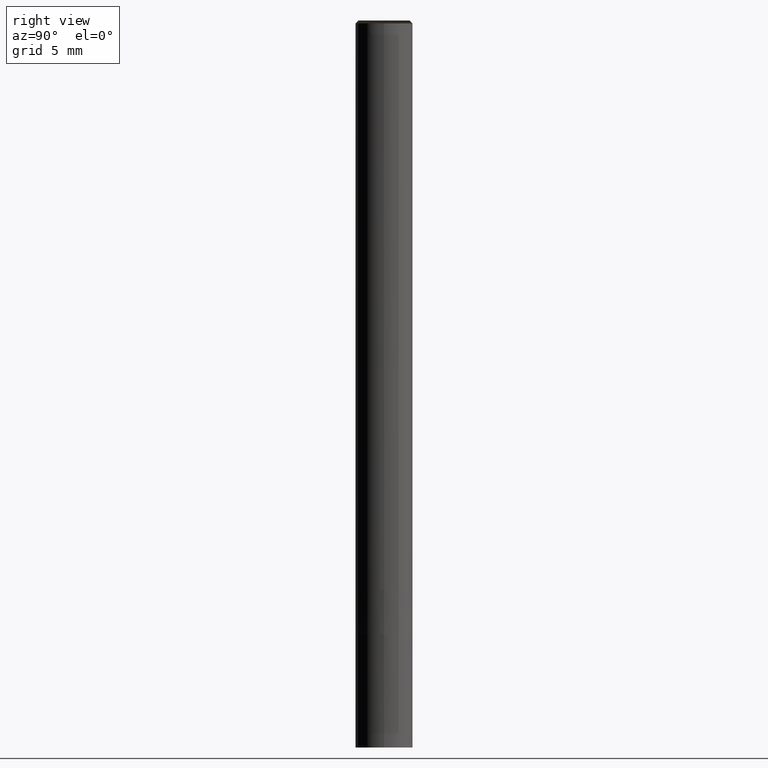
[diagram: clean part render]
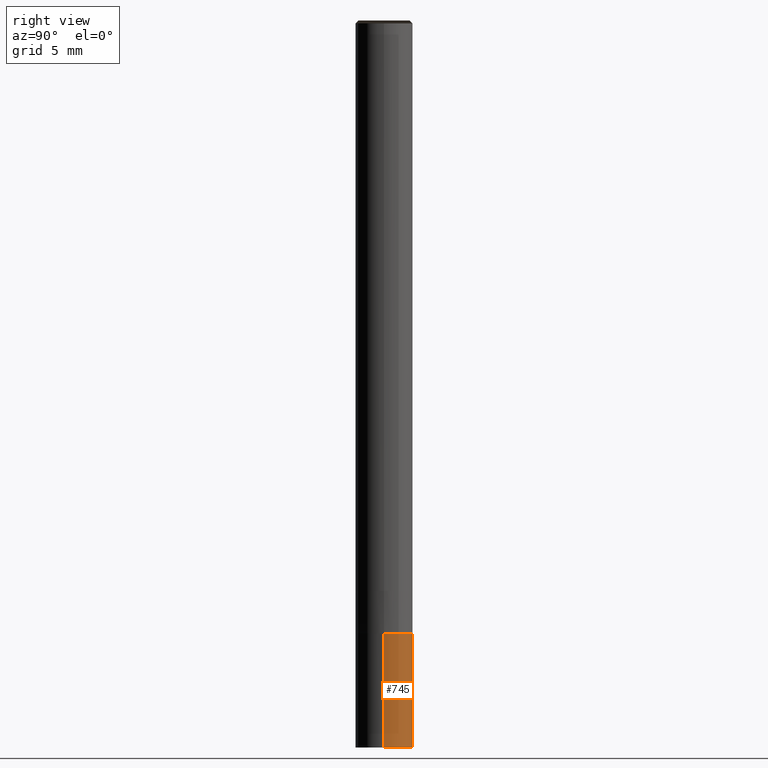
[diagram: same view with one face highlighted and labeled with its STEP entity id]
A machine part, right view. The second image highlights one B-rep face of the part: STEP entity #745.
In plain terms, the highlighted face is a freeform B-spline surface patch.
Its self-contained STEP definition (entity closure, byte-faithful):
#260=CARTESIAN_POINT('',(2.0,0.0,-11.0));
#411=CARTESIAN_POINT('',(0.0,2.0,-11.0));
#562=CARTESIAN_POINT('',(-2.0,0.0,-11.0));
#665=CARTESIAN_POINT('',(2.0,2.0,-11.0));
#666=CARTESIAN_POINT('',(-2.0,2.0,-11.0));
#667=CARTESIAN_POINT('',(2.0,0.0,-3.0));
#668=CARTESIAN_POINT('',(2.0,2.0,-3.0));
#669=CARTESIAN_POINT('',(0.0,2.0,-3.0));
#670=CARTESIAN_POINT('',(-2.0,2.0,-3.0));
#671=CARTESIAN_POINT('',(-2.0,0.0,-3.0));
#726=(
BOUNDED_SURFACE()
B_SPLINE_SURFACE(1,2,(
(#260,#665,#411,#666,#562),
(#667,#668,#669,#670,#671)
), .UNSPECIFIED.,.F.,.F.,.F.)
B_SPLINE_SURFACE_WITH_KNOTS((2,2),(3,2,3),(
0.0,1.0),(
0.0,0.5,1.0), .UNSPECIFIED.)
GEOMETRIC_REPRESENTATION_ITEM()
RATIONAL_B_SPLINE_SURFACE(((1.0,0.707106781187,1.0,0.707106781187,1.0),
(1.0,0.707106781187,1.0,0.707106781187,1.0)
))
REPRESENTATION_ITEM('')
SURFACE()
);
#727=(
BOUNDED_CURVE()
B_SPLINE_CURVE(2,(#562,#666,#411,#665,#260),.UNSPECIFIED.,.F.,.F.)
B_SPLINE_CURVE_WITH_KNOTS((3,2,3),
(0.0,0.5,1.0),.UNSPECIFIED.)
CURVE()
GEOMETRIC_REPRESENTATION_ITEM()
RATIONAL_B_SPLINE_CURVE((1.0,0.707106781187,1.0,0.707106781187,1.0))
REPRESENTATION_ITEM('')
);
#728=(
BOUNDED_CURVE()
B_SPLINE_CURVE(1,(#260,#667),.UNSPECIFIED.,.F.,.F.)
B_SPLINE_CURVE_WITH_KNOTS((2,2),
(0.0,1.0),.UNSPECIFIED.)
CURVE()
GEOMETRIC_REPRESENTATION_ITEM()
RATIONAL_B_SPLINE_CURVE((1.0,1.0))
REPRESENTATION_ITEM('')
);
#729=(
BOUNDED_CURVE()
B_SPLINE_CURVE(2,(#667,#668,#669,#670,#671),.UNSPECIFIED.,.F.,.F.)
B_SPLINE_CURVE_WITH_KNOTS((3,2,3),
(0.0,0.5,1.0),.UNSPECIFIED.)
CURVE()
GEOMETRIC_REPRESENTATION_ITEM()
RATIONAL_B_SPLINE_CURVE((1.0,0.707106781187,1.0,0.707106781187,1.0))
REPRESENTATION_ITEM('')
);
#730=(
BOUNDED_CURVE()
B_SPLINE_CURVE(1,(#671,#562),.UNSPECIFIED.,.F.,.F.)
B_SPLINE_CURVE_WITH_KNOTS((2,2),
(0.0,1.0),.UNSPECIFIED.)
CURVE()
GEOMETRIC_REPRESENTATION_ITEM()
RATIONAL_B_SPLINE_CURVE((1.0,1.0))
REPRESENTATION_ITEM('')
);
#731=VERTEX_POINT('',#260);
#732=VERTEX_POINT('',#562);
#733=VERTEX_POINT('',#667);
#734=VERTEX_POINT('',#671);
#735=EDGE_CURVE('',#732,#731,#727,.T.);
#736=EDGE_CURVE('',#731,#733,#728,.T.);
#737=EDGE_CURVE('',#733,#734,#729,.T.);
#738=EDGE_CURVE('',#734,#732,#730,.T.);
#739=ORIENTED_EDGE('',*,*,#735,.T.);
#740=ORIENTED_EDGE('',*,*,#736,.T.);
#741=ORIENTED_EDGE('',*,*,#737,.T.);
#742=ORIENTED_EDGE('',*,*,#738,.T.);
#743=EDGE_LOOP('',(#739,#740,#741,#742));
#744=FACE_OUTER_BOUND('',#743,.T.);
#745=ADVANCED_FACE('',(#744),#726,.T.);